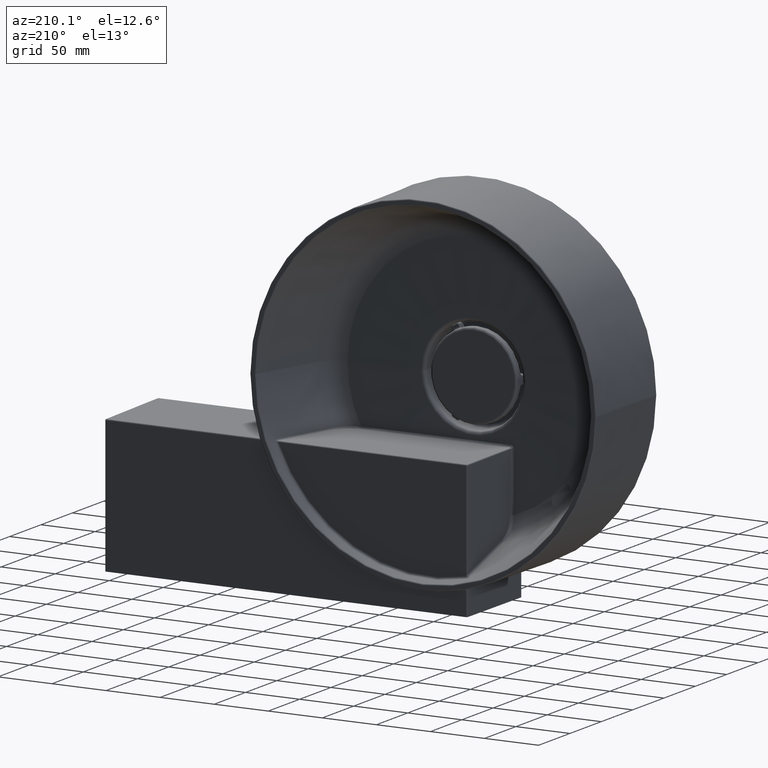
[diagram: clean part render]
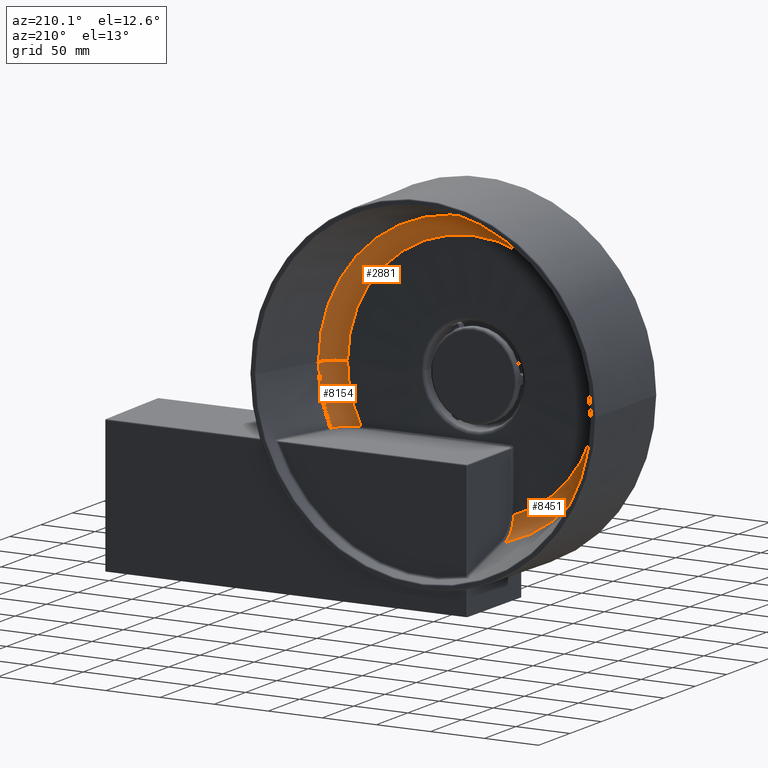
[diagram: same view with one multi-face feature highlighted, each face labeled with its STEP entity id]
A machine part, auxiliary view. The highlighted faces form ONE feature: a constant-radius fillet chain: 3 tangent blend faces with common blend radius 20 mm. The faces share edges in the B-rep.
Their STEP definitions:
[1] entity #2881 (Torus):
#682 = CIRCLE ( 'NONE', #6511, 134.4338916994192061 ) ;
#704 = DIRECTION ( 'NONE',  ( -1.000000000000000000, -1.032313178795999416E-16, 0.0000000000000000000 ) ) ;
#1176 = CARTESIAN_POINT ( 'NONE',  ( 1.387778780781445676E-14, 57.61358132658171627, 0.0000000000000000000 ) ) ;
#1670 = AXIS2_PLACEMENT_3D ( 'NONE', #1176, #7346, #7995 ) ;
#1882 = CARTESIAN_POINT ( 'NONE',  ( 9.684624439845843926E-15, 37.61758012698156506, 0.0000000000000000000 ) ) ;
#2861 = CARTESIAN_POINT ( 'NONE',  ( 115.7594727084467081, 37.61758012698157927, 1.531992514450001495E-14 ) ) ;
#2881 = ADVANCED_FACE ( 'NONE', ( #5000 ), #7367, .F. ) ;
#3157 = CARTESIAN_POINT ( 'NONE',  ( -115.7594727084466797, 37.61758012698155085, 0.0000000000000000000 ) ) ;
#3637 = CIRCLE ( 'NONE', #8863, 115.7594727084466939 ) ;
#3644 = EDGE_CURVE ( 'NONE', #9453, #5319, #9181, .T. ) ;
#4024 = AXIS2_PLACEMENT_3D ( 'NONE', #5744, #5734, #5729 ) ;
#4065 = CIRCLE ( 'NONE', #9210, 20.00000000000000355 ) ;
#4507 = VERTEX_POINT ( 'NONE', #2861 ) ;
#4774 = DIRECTION ( 'NONE',  ( -1.224646799147353207E-16, -1.487484948933726914E-32, 1.000000000000000000 ) ) ;
#5000 = FACE_OUTER_BOUND ( 'NONE', #6950, .T. ) ;
#5061 = CARTESIAN_POINT ( 'NONE',  ( 134.4338916994192061, 51.59946533649623035, 1.770868383702169800E-14 ) ) ;
#5083 = DIRECTION ( 'NONE',  ( -1.214623636765614367E-16, 1.000000000000000000, -0.0000000000000000000 ) ) ;
#5312 = VERTEX_POINT ( 'NONE', #5061 ) ;
#5319 = VERTEX_POINT ( 'NONE', #7998 ) ;
#5540 = CARTESIAN_POINT ( 'NONE',  ( 7.986351613643838256E-15, 51.59946533649621614, 0.0000000000000000000 ) ) ;
#5633 = ORIENTED_EDGE ( 'NONE', *, *, #6005, .F. ) ;
#5729 = DIRECTION ( 'NONE',  ( -1.000000000000000000, 0.0000000000000000000, 0.0000000000000000000 ) ) ;
#5734 = DIRECTION ( 'NONE',  ( 0.0000000000000000000, -0.0000000000000000000, -1.000000000000000000 ) ) ;
#5744 = CARTESIAN_POINT ( 'NONE',  ( -115.3595526844546839, 57.61358132658170206, 0.0000000000000000000 ) ) ;
#6005 = EDGE_CURVE ( 'NONE', #4507, #5312, #4065, .T. ) ;
#6210 = ORIENTED_EDGE ( 'NONE', *, *, #8409, .F. ) ;
#6291 = ORIENTED_EDGE ( 'NONE', *, *, #3644, .T. ) ;
#6511 = AXIS2_PLACEMENT_3D ( 'NONE', #5540, #7727, #704 ) ;
#6950 = EDGE_LOOP ( 'NONE', ( #5633, #6210, #6291, #7017 ) ) ;
#7017 = ORIENTED_EDGE ( 'NONE', *, *, #8159, .T. ) ;
#7346 = DIRECTION ( 'NONE',  ( -1.214623636765614367E-16, 1.000000000000000000, -0.0000000000000000000 ) ) ;
#7367 = TOROIDAL_SURFACE ( 'NONE', #1670, 115.3595526844546981, 20.00000000000001066 ) ;
#7727 = DIRECTION ( 'NONE',  ( -1.214623636765614367E-16, 1.000000000000000000, -0.0000000000000000000 ) ) ;
#7736 = DIRECTION ( 'NONE',  ( 1.000000000000000000, 0.0000000000000000000, 1.224646799147353454E-16 ) ) ;
#7995 = DIRECTION ( 'NONE',  ( -1.000000000000000000, -1.214623636765614367E-16, 0.0000000000000000000 ) ) ;
#7998 = CARTESIAN_POINT ( 'NONE',  ( -134.4338916994192061, 51.59946533649620193, 0.0000000000000000000 ) ) ;
#8017 = DIRECTION ( 'NONE',  ( -1.000000000000000000, -1.198846840186222324E-16, 0.0000000000000000000 ) ) ;
#8159 = EDGE_CURVE ( 'NONE', #5319, #5312, #682, .T. ) ;
#8409 = EDGE_CURVE ( 'NONE', #9453, #4507, #3637, .T. ) ;
#8863 = AXIS2_PLACEMENT_3D ( 'NONE', #1882, #5083, #8017 ) ;
#8917 = CARTESIAN_POINT ( 'NONE',  ( 115.3595526844547123, 57.61358132658173048, 1.412747069460879032E-14 ) ) ;
#9181 = CIRCLE ( 'NONE', #4024, 20.00000000000000355 ) ;
#9210 = AXIS2_PLACEMENT_3D ( 'NONE', #8917, #4774, #7736 ) ;
#9453 = VERTEX_POINT ( 'NONE', #3157 ) ;
[2] entity #8154 (Torus):
#56 = CARTESIAN_POINT ( 'NONE',  ( 117.2836133618565242, 42.70739880325150750, -53.00321104142850714 ) ) ;
#116 = CARTESIAN_POINT ( 'NONE',  ( 103.2044930379168761, 37.61758012698157927, -52.43174742962685286 ) ) ;
#353 = DIRECTION ( 'NONE',  ( -1.000000000000000000, -1.032313178795999416E-16, 0.0000000000000000000 ) ) ;
#844 = AXIS2_PLACEMENT_3D ( 'NONE', #4445, #7446, #353 ) ;
#903 = CARTESIAN_POINT ( 'NONE',  ( 119.6510133877388427, 44.98609748502889971, -53.10221248906142222 ) ) ;
#963 = CARTESIAN_POINT ( 'NONE',  ( 107.5375194105224352, 38.06834910966593810, -52.60891149110014453 ) ) ;
#1548 = DIRECTION ( 'NONE',  ( -1.214623636765614367E-16, 1.000000000000000000, -0.0000000000000000000 ) ) ;
#1688 = VERTEX_POINT ( 'NONE', #4704 ) ;
#1751 = CARTESIAN_POINT ( 'NONE',  ( 122.3696771435450330, 49.05441120772000829, -53.22476840568267420 ) ) ;
#1803 = CARTESIAN_POINT ( 'NONE',  ( 110.6842828090209849, 38.96520646670749954, -52.73594176021803293 ) ) ;
#2571 = CARTESIAN_POINT ( 'NONE',  ( 123.2496459056583404, 51.07592584429394122, -53.26954626204145882 ) ) ;
#2627 = CARTESIAN_POINT ( 'NONE',  ( 113.6896840492854466, 40.27235055673494202, -52.85698525877513276 ) ) ;
#2861 = CARTESIAN_POINT ( 'NONE',  ( 115.7594727084467081, 37.61758012698157927, 1.531992514450001495E-14 ) ) ;
#3039 = B_SPLINE_CURVE_WITH_KNOTS ( 'NONE', 3,
 ( #9051, #2571, #5716, #8498, #1751, #4952, #7901, #903, #4167, #7194, #56, #3417, #6473, #9096, #2627, #5767, #8540, #1803, #5004, #7946, #963, #4219, #7244, #116 ),
 .UNSPECIFIED., .F., .F.,
 ( 4, 2, 2, 2, 2, 2, 2, 2, 2, 2, 2, 4 ),
 ( 6.938893903907228378E-18, 0.001652237577429006062, 0.003304475154858005186, 0.006608950309715984350, 0.009913425464573964382, 0.01156566304200293098, 0.01321790061943189758, 0.01652237577428984291, 0.01817461335171881645, 0.01982685092914778999, 0.02313132608400568502, 0.02643580123886358352 ),
 .UNSPECIFIED. ) ;
#3171 = DIRECTION ( 'NONE',  ( -1.214623636765614367E-16, 1.000000000000000000, -0.0000000000000000000 ) ) ;
#3417 = CARTESIAN_POINT ( 'NONE',  ( 116.4253838802567316, 42.03122736317521202, -52.96798323925928287 ) ) ;
#3819 = VERTEX_POINT ( 'NONE', #5348 ) ;
#3824 = ORIENTED_EDGE ( 'NONE', *, *, #8152, .F. ) ;
#3939 = AXIS2_PLACEMENT_3D ( 'NONE', #9502, #3171, #6252 ) ;
#3968 = ORIENTED_EDGE ( 'NONE', *, *, #6005, .T. ) ;
#4065 = CIRCLE ( 'NONE', #9210, 20.00000000000000355 ) ;
#4167 = CARTESIAN_POINT ( 'NONE',  ( 118.9139870085159458, 44.18532619765161229, -53.07095517051260458 ) ) ;
#4219 = CARTESIAN_POINT ( 'NONE',  ( 105.3917233416633934, 37.73235409137719643, -52.52160224609831829 ) ) ;
#4445 = CARTESIAN_POINT ( 'NONE',  ( 7.986351613643838256E-15, 51.59946533649621614, 0.0000000000000000000 ) ) ;
#4507 = VERTEX_POINT ( 'NONE', #2861 ) ;
#4612 = ORIENTED_EDGE ( 'NONE', *, *, #9328, .T. ) ;
#4704 = CARTESIAN_POINT ( 'NONE',  ( 103.2044930379168761, 37.61758012698157927, -52.43174742962685286 ) ) ;
#4764 = DIRECTION ( 'NONE',  ( -1.000000000000000000, -1.214623636765614367E-16, 0.0000000000000000000 ) ) ;
#4774 = DIRECTION ( 'NONE',  ( -1.224646799147353207E-16, -1.487484948933726914E-32, 1.000000000000000000 ) ) ;
#4952 = CARTESIAN_POINT ( 'NONE',  ( 121.5842052265496420, 47.60444168746706595, -53.18745063758508707 ) ) ;
#5004 = CARTESIAN_POINT ( 'NONE',  ( 110.1639215914581769, 38.78641473221782121, -52.71497922791494517 ) ) ;
#5061 = CARTESIAN_POINT ( 'NONE',  ( 134.4338916994192061, 51.59946533649623035, 1.770868383702169800E-14 ) ) ;
#5290 = AXIS2_PLACEMENT_3D ( 'NONE', #8364, #1548, #4764 ) ;
#5312 = VERTEX_POINT ( 'NONE', #5061 ) ;
#5348 = CARTESIAN_POINT ( 'NONE',  ( 123.4251817020048776, 51.59946533649623035, -53.27941215214612214 ) ) ;
#5443 = CIRCLE ( 'NONE', #844, 134.4338916994192061 ) ;
#5451 = ORIENTED_EDGE ( 'NONE', *, *, #6385, .T. ) ;
#5716 = CARTESIAN_POINT ( 'NONE',  ( 123.0518068586357003, 50.56177342940783603, -53.25902362337006934 ) ) ;
#5767 = CARTESIAN_POINT ( 'NONE',  ( 112.2128662401551793, 39.57542225389563839, -52.79748937213094706 ) ) ;
#6005 = EDGE_CURVE ( 'NONE', #4507, #5312, #4065, .T. ) ;
#6252 = DIRECTION ( 'NONE',  ( -1.000000000000000000, -1.198846840186222324E-16, 0.0000000000000000000 ) ) ;
#6385 = EDGE_CURVE ( 'NONE', #3819, #1688, #3039, .T. ) ;
#6473 = CARTESIAN_POINT ( 'NONE',  ( 115.9852678541206785, 41.71156388215659661, -52.95002167904576851 ) ) ;
#7194 = CARTESIAN_POINT ( 'NONE',  ( 117.7036013318668353, 43.06568690876767391, -53.02055548928630202 ) ) ;
#7244 = CARTESIAN_POINT ( 'NONE',  ( 104.3051025564476220, 37.63761612065405160, -52.47713893114830341 ) ) ;
#7446 = DIRECTION ( 'NONE',  ( -1.214623636765614367E-16, 1.000000000000000000, -0.0000000000000000000 ) ) ;
#7736 = DIRECTION ( 'NONE',  ( 1.000000000000000000, 0.0000000000000000000, 1.224646799147353454E-16 ) ) ;
#7901 = CARTESIAN_POINT ( 'NONE',  ( 120.9860909821185118, 46.69567969880971958, -53.16046015747552644 ) ) ;
#7946 = CARTESIAN_POINT ( 'NONE',  ( 108.5966979807333956, 38.30958877764788895, -52.65175684856414051 ) ) ;
#8149 = CIRCLE ( 'NONE', #3939, 115.7594727084466939 ) ;
#8152 = EDGE_CURVE ( 'NONE', #4507, #1688, #8149, .T. ) ;
#8154 = ADVANCED_FACE ( 'NONE', ( #8909 ), #9108, .F. ) ;
#8364 = CARTESIAN_POINT ( 'NONE',  ( 1.387778780781445676E-14, 57.61358132658171627, 0.0000000000000000000 ) ) ;
#8498 = CARTESIAN_POINT ( 'NONE',  ( 122.6123296157745557, 49.55190360692454732, -53.23665841159635903 ) ) ;
#8540 = CARTESIAN_POINT ( 'NONE',  ( 111.7102907667247109, 39.36037049963401557, -52.77725852694352682 ) ) ;
#8909 = FACE_OUTER_BOUND ( 'NONE', #9198, .T. ) ;
#8917 = CARTESIAN_POINT ( 'NONE',  ( 115.3595526844547123, 57.61358132658173048, 1.412747069460879032E-14 ) ) ;
#9051 = CARTESIAN_POINT ( 'NONE',  ( 123.4251817020048776, 51.59946533649623035, -53.27941215214612214 ) ) ;
#9096 = CARTESIAN_POINT ( 'NONE',  ( 114.6331947767801438, 40.80570376313929160, -52.89505896990753797 ) ) ;
#9108 = TOROIDAL_SURFACE ( 'NONE', #5290, 115.3595526844546981, 20.00000000000001066 ) ;
#9198 = EDGE_LOOP ( 'NONE', ( #3824, #3968, #4612, #5451 ) ) ;
#9210 = AXIS2_PLACEMENT_3D ( 'NONE', #8917, #4774, #7736 ) ;
#9328 = EDGE_CURVE ( 'NONE', #5312, #3819, #5443, .T. ) ;
#9502 = CARTESIAN_POINT ( 'NONE',  ( 9.684624439845843926E-15, 37.61758012698156506, 0.0000000000000000000 ) ) ;
[3] entity #8451 (Torus):
#5 = CARTESIAN_POINT ( 'NONE',  ( -37.63236565383159160, 37.63806870981262165, -110.5548968657503366 ) ) ;
#54 = CARTESIAN_POINT ( 'NONE',  ( -37.94299865372087766, 42.81539642202024964, -123.1407439755959956 ) ) ;
#128 = CIRCLE ( 'NONE', #6050, 115.7594727084466939 ) ;
#197 = CARTESIAN_POINT ( 'NONE',  ( 7.986351613643838256E-15, 51.59946533649621614, 0.0000000000000000000 ) ) ;
#650 = AXIS2_PLACEMENT_3D ( 'NONE', #197, #3537, #6593 ) ;
#899 = CARTESIAN_POINT ( 'NONE',  ( -37.89095680273425160, 40.91705040511643432, -120.5682057719001392 ) ) ;
#961 = CARTESIAN_POINT ( 'NONE',  ( -38.01604970887958501, 51.08956405705062309, -128.7790864045347803 ) ) ;
#1304 = ORIENTED_EDGE ( 'NONE', *, *, #6213, .T. ) ;
#1370 = ORIENTED_EDGE ( 'NONE', *, *, #9541, .T. ) ;
#1427 = EDGE_LOOP ( 'NONE', ( #1466, #1457, #1370, #1304 ) ) ;
#1457 = ORIENTED_EDGE ( 'NONE', *, *, #7755, .F. ) ;
#1466 = ORIENTED_EDGE ( 'NONE', *, *, #3644, .F. ) ;
#1746 = CARTESIAN_POINT ( 'NONE',  ( -37.82736140891255161, 39.40352691188117262, -117.7671741959554339 ) ) ;
#1800 = CARTESIAN_POINT ( 'NONE',  ( -38.01192348228882878, 49.12207592214532781, -127.9479928985211359 ) ) ;
#1999 = DIRECTION ( 'NONE',  ( -1.214623636765614367E-16, 1.000000000000000000, -0.0000000000000000000 ) ) ;
#2568 = CARTESIAN_POINT ( 'NONE',  ( -37.75064879918534189, 38.36139856739780640, -114.7517639135197669 ) ) ;
#2622 = CARTESIAN_POINT ( 'NONE',  ( -37.98545535695203057, 45.52312931992285172, -125.6853994526793201 ) ) ;
#2903 = VERTEX_POINT ( 'NONE', #7660 ) ;
#3024 = B_SPLINE_CURVE_WITH_KNOTS ( 'NONE', 3,
 ( #7153, #5, #3360, #6417, #9050, #2568, #5714, #8496, #1746, #4949, #7899, #899, #4164, #7192, #54, #3414, #6470, #9094, #2622, #5763, #8538, #1800, #5001, #7944, #961, #4215 ),
 .UNSPECIFIED., .F., .F.,
 ( 4, 2, 2, 2, 2, 2, 2, 2, 2, 2, 2, 2, 4 ),
 ( 0.0000000000000000000, 0.003193850350138316158, 0.004790775525207496138, 0.006387700700276676552, 0.009581551050415030440, 0.01117847622548420738, 0.01277540140055338259, 0.01596925175069174863, 0.01756617692576091516, 0.01916310210083005394, 0.02235695245096828640, 0.02395387762603739049, 0.02555080280110649457 ),
 .UNSPECIFIED. ) ;
#3157 = CARTESIAN_POINT ( 'NONE',  ( -115.7594727084466797, 37.61758012698155085, 0.0000000000000000000 ) ) ;
#3360 = CARTESIAN_POINT ( 'NONE',  ( -37.66365609901140488, 37.73666331089683723, -111.6157081480794915 ) ) ;
#3414 = CARTESIAN_POINT ( 'NONE',  ( -37.96306546308538543, 43.92284113016172142, -124.2794861708760408 ) ) ;
#3537 = DIRECTION ( 'NONE',  ( -1.214623636765614367E-16, 1.000000000000000000, -0.0000000000000000000 ) ) ;
#3644 = EDGE_CURVE ( 'NONE', #9453, #5319, #9181, .T. ) ;
#3893 = CARTESIAN_POINT ( 'NONE',  ( 9.684624439845843926E-15, 37.61758012698156506, 0.0000000000000000000 ) ) ;
#4024 = AXIS2_PLACEMENT_3D ( 'NONE', #5744, #5734, #5729 ) ;
#4164 = CARTESIAN_POINT ( 'NONE',  ( -37.90053346131929146, 41.21082285373481113, -121.0187117121364366 ) ) ;
#4215 = CARTESIAN_POINT ( 'NONE',  ( -38.01594466933054406, 51.59946533649620903, -128.9467300413219846 ) ) ;
#4454 = AXIS2_PLACEMENT_3D ( 'NONE', #8666, #1999, #5184 ) ;
#4949 = CARTESIAN_POINT ( 'NONE',  ( -37.86038486951768078, 40.11438144485286017, -119.1883701550735566 ) ) ;
#5001 = CARTESIAN_POINT ( 'NONE',  ( -38.01351891881679279, 49.60307008786301708, -128.1747966768948572 ) ) ;
#5184 = DIRECTION ( 'NONE',  ( -1.000000000000000000, -1.214623636765614367E-16, 0.0000000000000000000 ) ) ;
#5257 = CIRCLE ( 'NONE', #650, 134.4338916994192061 ) ;
#5319 = VERTEX_POINT ( 'NONE', #7998 ) ;
#5714 = CARTESIAN_POINT ( 'NONE',  ( -37.76426553938544117, 38.50823048037037921, -115.2681263733442734 ) ) ;
#5729 = DIRECTION ( 'NONE',  ( -1.000000000000000000, 0.0000000000000000000, 0.0000000000000000000 ) ) ;
#5734 = DIRECTION ( 'NONE',  ( 0.0000000000000000000, -0.0000000000000000000, -1.000000000000000000 ) ) ;
#5744 = CARTESIAN_POINT ( 'NONE',  ( -115.3595526844546839, 57.61358132658170206, 0.0000000000000000000 ) ) ;
#5763 = CARTESIAN_POINT ( 'NONE',  ( -37.99888555393204825, 46.81030966364830448, -126.6462233966280166 ) ) ;
#6050 = AXIS2_PLACEMENT_3D ( 'NONE', #3893, #6945, #9472 ) ;
#6213 = EDGE_CURVE ( 'NONE', #2903, #5319, #5257, .T. ) ;
#6417 = CARTESIAN_POINT ( 'NONE',  ( -37.70816230972244654, 38.00023602398837852, -113.1906158104824129 ) ) ;
#6470 = CARTESIAN_POINT ( 'NONE',  ( -37.96920393718310294, 44.30708330008764051, -124.6450391315403579 ) ) ;
#6593 = DIRECTION ( 'NONE',  ( -1.000000000000000000, -1.032313178795999416E-16, 0.0000000000000000000 ) ) ;
#6945 = DIRECTION ( 'NONE',  ( -1.214623636765614367E-16, 1.000000000000000000, -0.0000000000000000000 ) ) ;
#7153 = CARTESIAN_POINT ( 'NONE',  ( -37.59935606473698044, 37.61758012698155795, -109.4830760677409103 ) ) ;
#7192 = CARTESIAN_POINT ( 'NONE',  ( -37.92742962867713175, 42.13721128799789994, -122.3257171302321211 ) ) ;
#7586 = VERTEX_POINT ( 'NONE', #9014 ) ;
#7660 = CARTESIAN_POINT ( 'NONE',  ( -38.01594466933054406, 51.59946533649620903, -128.9467300413219846 ) ) ;
#7755 = EDGE_CURVE ( 'NONE', #7586, #9453, #128, .T. ) ;
#7899 = CARTESIAN_POINT ( 'NONE',  ( -37.87090009255092582, 40.36950169881048112, -119.6539177090164969 ) ) ;
#7944 = CARTESIAN_POINT ( 'NONE',  ( -38.01558295653229180, 50.58628390296648547, -128.5902021214450315 ) ) ;
#7998 = CARTESIAN_POINT ( 'NONE',  ( -134.4338916994192061, 51.59946533649620193, 0.0000000000000000000 ) ) ;
#8451 = ADVANCED_FACE ( 'NONE', ( #9226 ), #8520, .F. ) ;
#8496 = CARTESIAN_POINT ( 'NONE',  ( -37.80338306810761395, 39.00199320476799159, -116.7871101964599632 ) ) ;
#8520 = TOROIDAL_SURFACE ( 'NONE', #4454, 115.3595526844546981, 20.00000000000001066 ) ;
#8538 = CARTESIAN_POINT ( 'NONE',  ( -38.00544608642567823, 47.71022499953893714, -127.2115506204469995 ) ) ;
#8666 = CARTESIAN_POINT ( 'NONE',  ( 1.387778780781445676E-14, 57.61358132658171627, 0.0000000000000000000 ) ) ;
#9014 = CARTESIAN_POINT ( 'NONE',  ( -37.59935606473698044, 37.61758012698155795, -109.4830760677409103 ) ) ;
#9050 = CARTESIAN_POINT ( 'NONE',  ( -37.72259161016098261, 38.10745693844233273, -113.7128550740939374 ) ) ;
#9094 = CARTESIAN_POINT ( 'NONE',  ( -37.98039118432820516, 45.10646031426412605, -125.3474338181980414 ) ) ;
#9181 = CIRCLE ( 'NONE', #4024, 20.00000000000000355 ) ;
#9226 = FACE_OUTER_BOUND ( 'NONE', #1427, .T. ) ;
#9453 = VERTEX_POINT ( 'NONE', #3157 ) ;
#9472 = DIRECTION ( 'NONE',  ( -1.000000000000000000, -1.198846840186222324E-16, 0.0000000000000000000 ) ) ;
#9541 = EDGE_CURVE ( 'NONE', #7586, #2903, #3024, .T. ) ;